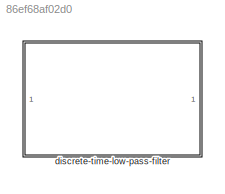
MODEL slx_86ef68af02d0
KIND library
CONFIG AbsTol = auto
CONFIG EnableMultiTasking = off
CONFIG FixedStep = auto
CONFIG MaxStep = auto
CONFIG MinStep = auto
CONFIG RelTol = 1e-3
CONFIG SampleTimeConstraint = Unconstrained
CONFIG SolverName = VariableStepAuto
CONFIG StartTime = 0.0
CONFIG StopTime = 10.0
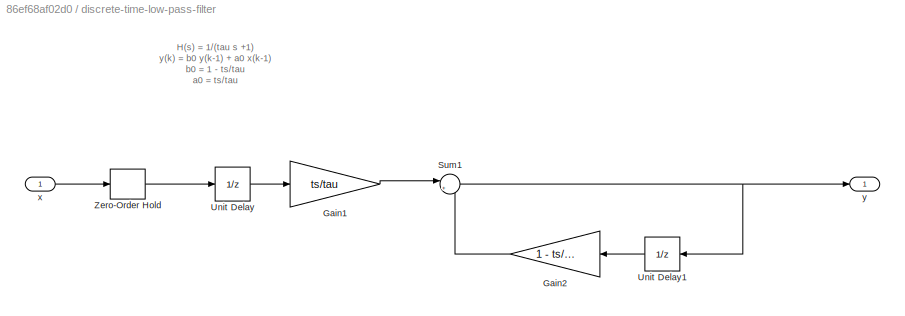
BLOCK [SubSystem] discrete-time-low-pass-filter
BLOCK [Gain] discrete-time-low-pass-filter/Gain1
  Gain = ts/tau
BLOCK [Gain] discrete-time-low-pass-filter/Gain2
  Gain = 1 - ts/tau
BLOCK [Sum] discrete-time-low-pass-filter/Sum1
  Inputs = |++
BLOCK [UnitDelay] discrete-time-low-pass-filter/Unit Delay
  HasFrameUpgradeWarning = on
  NameLocation = top
  SampleTime = -1
BLOCK [UnitDelay] discrete-time-low-pass-filter/Unit Delay1
  HasFrameUpgradeWarning = on
  NameLocation = top
  SampleTime = -1
BLOCK [ZeroOrderHold] discrete-time-low-pass-filter/Zero-Order Hold
  SampleTime = -1
BLOCK [Inport] discrete-time-low-pass-filter/x
BLOCK [Outport] discrete-time-low-pass-filter/y
ANNOTATION discrete-time-low-pass-filter: H(s) = 1/(tau s +1) y(k) = b0 y(k-1) + a0 x(k-1) b0 = 1 - ts/tau a0 = ts/tau
LINE discrete-time-low-pass-filter/Gain1:1 -> discrete-time-low-pass-filter/Sum1:1
LINE discrete-time-low-pass-filter/Gain2:1 -> discrete-time-low-pass-filter/Sum1:2
NET discrete-time-low-pass-filter/Sum1:1 -> discrete-time-low-pass-filter/Unit Delay1:1, discrete-time-low-pass-filter/y:1
LINE discrete-time-low-pass-filter/Unit Delay1:1 -> discrete-time-low-pass-filter/Gain2:1
LINE discrete-time-low-pass-filter/Unit Delay:1 -> discrete-time-low-pass-filter/Gain1:1
LINE discrete-time-low-pass-filter/Zero-Order Hold:1 -> discrete-time-low-pass-filter/Unit Delay:1
LINE discrete-time-low-pass-filter/x:1 -> discrete-time-low-pass-filter/Zero-Order Hold:1
note: NET lines group one-source signal fan-out (src -> all destinations, sorted); 1:1 wires keep LINE
